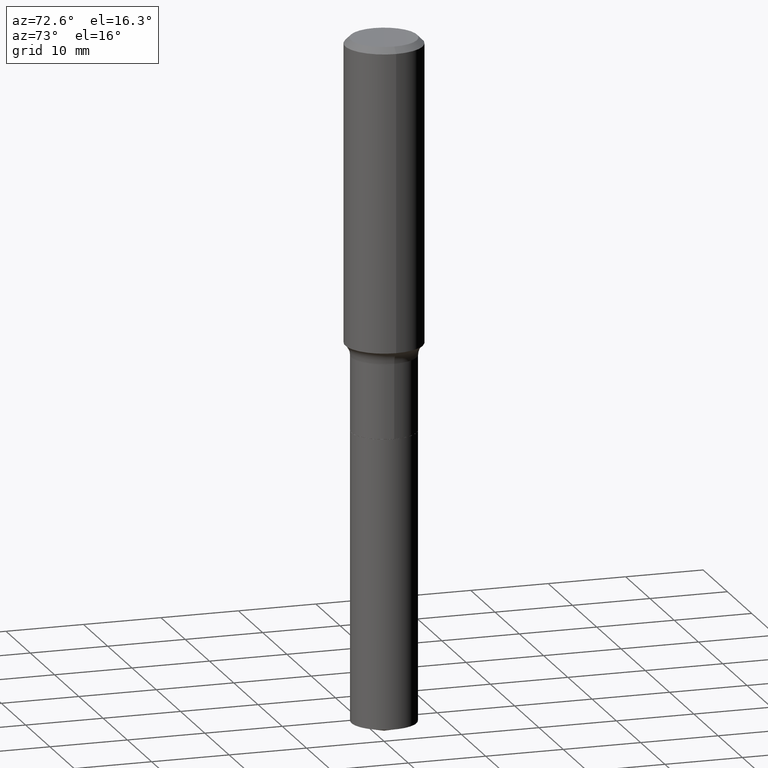
[diagram: clean part render]
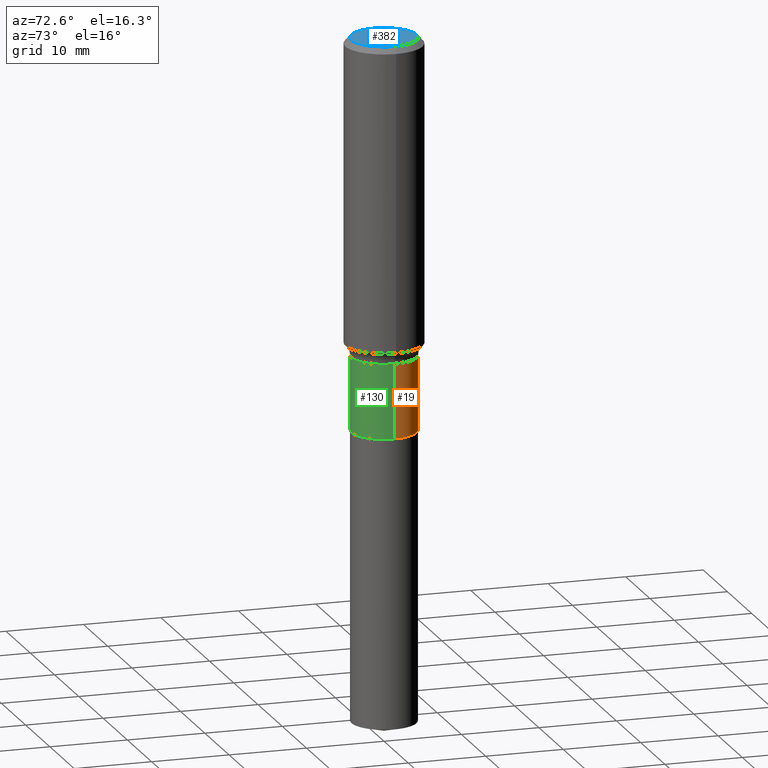
[diagram: same view with three faces highlighted in distinct colors, each labeled with its STEP entity id]
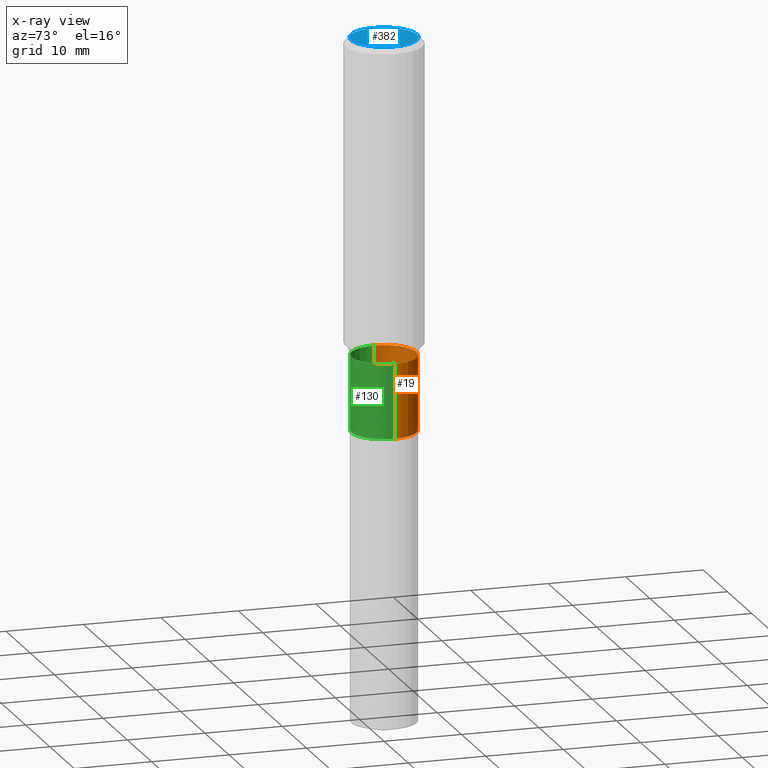
[diagram: x-ray of the same camera — body ghosted, the three highlighted faces saturated]
A machine part, auxiliary view with three faces highlighted in distinct colors.
The next image is the same camera in x-ray (body ghosted, the three faces saturated) — at least one of them is partly hidden behind the body in this view.
Their STEP definitions:

[orange] entity #19 — the highlighted cylindrical surface (edge-blend (fillet) strip) has radius 4.1999 mm, axis along (-0, 0, 1).
#12 = ORIENTED_EDGE ( 'NONE', *, *, #227, .F. ) ;
#13 = DIRECTION ( 'NONE',  ( -2.445468806185136597E-29, 3.491481338843145583E-15, 1.000000000000000000 ) ) ;
#19 = ADVANCED_FACE ( 'NONE', ( #44 ), #261, .T. ) ;
#23 = DIRECTION ( 'NONE',  ( 1.000000000000000000, -6.982962677686265922E-15, 4.876176775795934672E-29 ) ) ;
#29 = CARTESIAN_POINT ( 'NONE',  ( -0.1653499999999999415, -5.088136812037507481E-15, -1.603899999999999881 ) ) ;
#31 = CARTESIAN_POINT ( 'NONE',  ( -0.1653499999999999970, 1.174882413579325636E-15, -8.133459171736486599E-30 ) ) ;
#39 = DIRECTION ( 'NONE',  ( -2.445468806185136877E-29, 3.491481338843145188E-15, 1.000000000000000000 ) ) ;
#44 = FACE_OUTER_BOUND ( 'NONE', #388, .T. ) ;
#61 = AXIS2_PLACEMENT_3D ( 'NONE', #411, #405, #300 ) ;
#72 = VERTEX_POINT ( 'NONE', #29 ) ;
#81 = VERTEX_POINT ( 'NONE', #262 ) ;
#86 = CIRCLE ( 'NONE', #61, 0.1653500000000000247 ) ;
#96 = EDGE_CURVE ( 'NONE', #136, #72, #177, .T. ) ;
#107 = CIRCLE ( 'NONE', #278, 0.1653499999999999415 ) ;
#116 = ORIENTED_EDGE ( 'NONE', *, *, #289, .T. ) ;
#136 = VERTEX_POINT ( 'NONE', #155 ) ;
#140 = CARTESIAN_POINT ( 'NONE',  ( 0.000000000000000000, 0.000000000000000000, 0.000000000000000000 ) ) ;
#155 = CARTESIAN_POINT ( 'NONE',  ( -0.1653500000000000247, -5.088136812037506692E-15, -1.983699999999999353 ) ) ;
#177 = LINE ( 'NONE', #31, #335 ) ;
#190 = EDGE_CURVE ( 'NONE', #81, #324, #312, .T. ) ;
#206 = ORIENTED_EDGE ( 'NONE', *, *, #96, .T. ) ;
#210 = DIRECTION ( 'NONE',  ( -2.445468806185136597E-29, 3.491481338843145583E-15, 1.000000000000000000 ) ) ;
#218 = AXIS2_PLACEMENT_3D ( 'NONE', #140, #210, #23 ) ;
#227 = EDGE_CURVE ( 'NONE', #324, #72, #107, .T. ) ;
#253 = ORIENTED_EDGE ( 'NONE', *, *, #190, .F. ) ;
#261 = CYLINDRICAL_SURFACE ( 'NONE', #218, 0.1653499999999999970 ) ;
#262 = CARTESIAN_POINT ( 'NONE',  ( 0.1653500000000000247, -8.080684410618569686E-15, -1.983699999999999353 ) ) ;
#278 = AXIS2_PLACEMENT_3D ( 'NONE', #323, #13, #380 ) ;
#289 = EDGE_CURVE ( 'NONE', #81, #136, #86, .T. ) ;
#300 = DIRECTION ( 'NONE',  ( 1.000000000000000000, -6.982962677686269866E-15, 0.000000000000000000 ) ) ;
#312 = LINE ( 'NONE', #457, #415 ) ;
#323 = CARTESIAN_POINT ( 'NONE',  ( 3.922287418240340052E-29, -5.599986919370520029E-15, -1.603899999999999881 ) ) ;
#324 = VERTEX_POINT ( 'NONE', #448 ) ;
#333 = DIRECTION ( 'NONE',  ( -2.445468806185136877E-29, 3.491481338843145188E-15, 1.000000000000000000 ) ) ;
#335 = VECTOR ( 'NONE', #333, 39.37007874015748143 ) ;
#380 = DIRECTION ( 'NONE',  ( 1.000000000000000000, -6.982962677686267499E-15, 0.000000000000000000 ) ) ;
#388 = EDGE_LOOP ( 'NONE', ( #116, #206, #12, #253 ) ) ;
#405 = DIRECTION ( 'NONE',  ( -2.445468806185136597E-29, 3.491481338843145583E-15, 1.000000000000000000 ) ) ;
#411 = CARTESIAN_POINT ( 'NONE',  ( 4.851076470829453919E-29, -6.926051531863145416E-15, -1.983699999999999353 ) ) ;
#415 = VECTOR ( 'NONE', #39, 39.37007874015748143 ) ;
#448 = CARTESIAN_POINT ( 'NONE',  ( 0.1653499999999999415, -6.754619798125944299E-15, -1.603899999999999881 ) ) ;
#457 = CARTESIAN_POINT ( 'NONE',  ( 0.1653499999999999970, -1.154632878755424073E-15, 8.062758298778578169E-30 ) ) ;

[blue] entity #382 — the highlighted planar face has unit normal (0, -0, -1).
#58 = VERTEX_POINT ( 'NONE', #103 ) ;
#77 = AXIS2_PLACEMENT_3D ( 'NONE', #102, #258, #192 ) ;
#102 = CARTESIAN_POINT ( 'NONE',  ( -1.001697619218021790E-46, 1.430158722866389718E-32, 4.096137381448108366E-18 ) ) ;
#103 = CARTESIAN_POINT ( 'NONE',  ( -0.1673224999999999851, 1.219954130253505460E-15, 4.096137381439757534E-18 ) ) ;
#121 = CARTESIAN_POINT ( 'NONE',  ( -1.001697619218021790E-46, 1.430158722866389718E-32, 4.096137381448108366E-18 ) ) ;
#149 = CIRCLE ( 'NONE', #77, 0.1673224999999999851 ) ;
#182 = EDGE_CURVE ( 'NONE', #243, #58, #241, .T. ) ;
#192 = DIRECTION ( 'NONE',  ( 1.000000000000000000, -6.982962677686267499E-15, 4.876294436782262290E-29 ) ) ;
#196 = DIRECTION ( 'NONE',  ( 1.000000000000000000, -6.982962677686267499E-15, 4.876294436782262290E-29 ) ) ;
#204 = ORIENTED_EDGE ( 'NONE', *, *, #182, .T. ) ;
#215 = ORIENTED_EDGE ( 'NONE', *, *, #441, .T. ) ;
#229 = AXIS2_PLACEMENT_3D ( 'NONE', #476, #297, #443 ) ;
#241 = CIRCLE ( 'NONE', #482, 0.1673224999999999851 ) ;
#243 = VERTEX_POINT ( 'NONE', #285 ) ;
#254 = FACE_OUTER_BOUND ( 'NONE', #277, .T. ) ;
#258 = DIRECTION ( 'NONE',  ( -2.445468806185136597E-29, 3.491481338843145583E-15, 1.000000000000000000 ) ) ;
#277 = EDGE_LOOP ( 'NONE', ( #215, #204 ) ) ;
#285 = CARTESIAN_POINT ( 'NONE',  ( 0.1673224999999999851, -1.300749711163072594E-15, 4.096137381456741925E-18 ) ) ;
#297 = DIRECTION ( 'NONE',  ( 2.438088387897960049E-29, -3.491481338843145188E-15, -1.000000000000000000 ) ) ;
#327 = PLANE ( 'NONE',  #229 ) ;
#382 = ADVANCED_FACE ( 'NONE', ( #254 ), #327, .F. ) ;
#418 = DIRECTION ( 'NONE',  ( -2.445468806185136597E-29, 3.491481338843145583E-15, 1.000000000000000000 ) ) ;
#441 = EDGE_CURVE ( 'NONE', #58, #243, #149, .T. ) ;
#443 = DIRECTION ( 'NONE',  ( -1.000000000000000000, 6.982962677686265922E-15, -4.876176775795935793E-29 ) ) ;
#476 = CARTESIAN_POINT ( 'NONE',  ( -5.008488096090108951E-47, 7.150793614331948590E-33, 2.048068690724054183E-18 ) ) ;
#482 = AXIS2_PLACEMENT_3D ( 'NONE', #121, #418, #196 ) ;

[green] entity #130 — the highlighted cylindrical surface (edge-blend (fillet) strip) has radius 4.1999 mm, axis along (-0, 0, 1).
#2 = DIRECTION ( 'NONE',  ( 1.000000000000000000, -6.982962677686265922E-15, 4.876176775795934672E-29 ) ) ;
#15 = DIRECTION ( 'NONE',  ( -2.445468806185136597E-29, 3.491481338843145583E-15, 1.000000000000000000 ) ) ;
#29 = CARTESIAN_POINT ( 'NONE',  ( -0.1653499999999999415, -5.088136812037507481E-15, -1.603899999999999881 ) ) ;
#31 = CARTESIAN_POINT ( 'NONE',  ( -0.1653499999999999970, 1.174882413579325636E-15, -8.133459171736486599E-30 ) ) ;
#39 = DIRECTION ( 'NONE',  ( -2.445468806185136877E-29, 3.491481338843145188E-15, 1.000000000000000000 ) ) ;
#40 = AXIS2_PLACEMENT_3D ( 'NONE', #117, #110, #263 ) ;
#43 = DIRECTION ( 'NONE',  ( -2.445468806185136597E-29, 3.491481338843145583E-15, 1.000000000000000000 ) ) ;
#55 = EDGE_CURVE ( 'NONE', #72, #324, #429, .T. ) ;
#56 = ORIENTED_EDGE ( 'NONE', *, *, #55, .F. ) ;
#72 = VERTEX_POINT ( 'NONE', #29 ) ;
#81 = VERTEX_POINT ( 'NONE', #262 ) ;
#96 = EDGE_CURVE ( 'NONE', #136, #72, #177, .T. ) ;
#110 = DIRECTION ( 'NONE',  ( -2.445468806185136597E-29, 3.491481338843145583E-15, 1.000000000000000000 ) ) ;
#113 = CIRCLE ( 'NONE', #40, 0.1653500000000000247 ) ;
#117 = CARTESIAN_POINT ( 'NONE',  ( 4.851076470829453919E-29, -6.926051531863145416E-15, -1.983699999999999353 ) ) ;
#130 = ADVANCED_FACE ( 'NONE', ( #391 ), #216, .T. ) ;
#136 = VERTEX_POINT ( 'NONE', #155 ) ;
#143 = AXIS2_PLACEMENT_3D ( 'NONE', #153, #43, #2 ) ;
#153 = CARTESIAN_POINT ( 'NONE',  ( 0.000000000000000000, 0.000000000000000000, 0.000000000000000000 ) ) ;
#155 = CARTESIAN_POINT ( 'NONE',  ( -0.1653500000000000247, -5.088136812037506692E-15, -1.983699999999999353 ) ) ;
#169 = ORIENTED_EDGE ( 'NONE', *, *, #217, .T. ) ;
#177 = LINE ( 'NONE', #31, #335 ) ;
#190 = EDGE_CURVE ( 'NONE', #81, #324, #312, .T. ) ;
#216 = CYLINDRICAL_SURFACE ( 'NONE', #143, 0.1653499999999999970 ) ;
#217 = EDGE_CURVE ( 'NONE', #136, #81, #113, .T. ) ;
#262 = CARTESIAN_POINT ( 'NONE',  ( 0.1653500000000000247, -8.080684410618569686E-15, -1.983699999999999353 ) ) ;
#263 = DIRECTION ( 'NONE',  ( 1.000000000000000000, -6.982962677686269866E-15, 0.000000000000000000 ) ) ;
#294 = ORIENTED_EDGE ( 'NONE', *, *, #96, .F. ) ;
#302 = DIRECTION ( 'NONE',  ( 1.000000000000000000, -6.982962677686267499E-15, 0.000000000000000000 ) ) ;
#312 = LINE ( 'NONE', #457, #415 ) ;
#313 = EDGE_LOOP ( 'NONE', ( #294, #169, #432, #56 ) ) ;
#324 = VERTEX_POINT ( 'NONE', #448 ) ;
#333 = DIRECTION ( 'NONE',  ( -2.445468806185136877E-29, 3.491481338843145188E-15, 1.000000000000000000 ) ) ;
#335 = VECTOR ( 'NONE', #333, 39.37007874015748143 ) ;
#370 = AXIS2_PLACEMENT_3D ( 'NONE', #473, #15, #302 ) ;
#391 = FACE_OUTER_BOUND ( 'NONE', #313, .T. ) ;
#415 = VECTOR ( 'NONE', #39, 39.37007874015748143 ) ;
#429 = CIRCLE ( 'NONE', #370, 0.1653499999999999415 ) ;
#432 = ORIENTED_EDGE ( 'NONE', *, *, #190, .T. ) ;
#448 = CARTESIAN_POINT ( 'NONE',  ( 0.1653499999999999415, -6.754619798125944299E-15, -1.603899999999999881 ) ) ;
#457 = CARTESIAN_POINT ( 'NONE',  ( 0.1653499999999999970, -1.154632878755424073E-15, 8.062758298778578169E-30 ) ) ;
#473 = CARTESIAN_POINT ( 'NONE',  ( 3.922287418240340052E-29, -5.599986919370520029E-15, -1.603899999999999881 ) ) ;